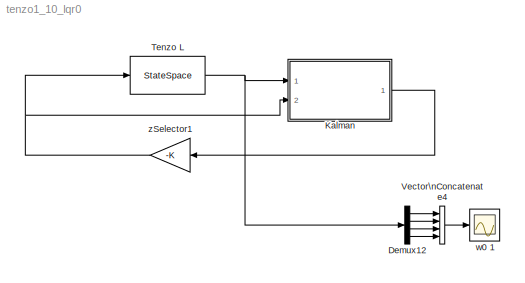
MODEL tenzo1_10_lqr0
KIND model
BLOCK [Demux] Demux12
  DisplayOption = bar
  Ports = [1, 4]
  SID = 4
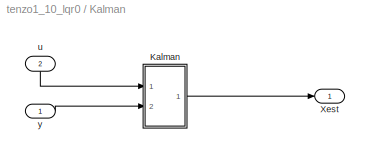
BLOCK [SubSystem] Kalman
  FunctionWithSeparateData = off
  MaskHideContents = off
  MinAlgLoopOccurrences = off
  Opaque = off
  Ports = [2, 1]
  PropExecContextOutsideSubsystem = off
  RTWSystemCode = Auto
  RequestExecContextInheritance = off
  SID = 7
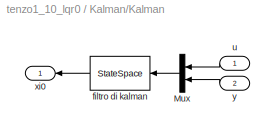
BLOCK [SubSystem] Kalman/Kalman
  FunctionWithSeparateData = off
  MaskHideContents = off
  MinAlgLoopOccurrences = off
  Opaque = off
  Ports = [2, 1]
  PropExecContextOutsideSubsystem = off
  RTWSystemCode = Auto
  RequestExecContextInheritance = off
  SID = 15
BLOCK [Mux] Kalman/Kalman/Mux
  DisplayOption = bar
  Inputs = [4 4]
  Ports = [2, 1]
  SID = 18
BLOCK [StateSpace] Kalman/Kalman/filtro di kalman
  A = Aoss
  B = Boss
  C = Coss
  D = Doss
  SID = 19
  X0 = [0 0 0 0 0 0 0 0]
BLOCK [Inport] Kalman/Kalman/u
  IconDisplay = Port number
  SID = 16
BLOCK [Outport] Kalman/Kalman/xi0
  IconDisplay = Port number
  SID = 20
BLOCK [Inport] Kalman/Kalman/y
  IconDisplay = Port number
  Port = 2
  SID = 17
BLOCK [Outport] Kalman/Xest
  IconDisplay = Port number
  SID = 28
BLOCK [Inport] Kalman/u
  IconDisplay = Port number
  Port = 2
  SID = 9
BLOCK [Inport] Kalman/y
  IconDisplay = Port number
  SID = 8
BLOCK [StateSpace] Tenzo L
  A = AMin
  B = BMin
  C = ClocalMin
  D = D
  SID = 1
  X0 = [0 0 0 0 0 0 0 0 ]
BLOCK [Concatenate] Vector\nConcatenate4
  NumInputs = 4
  Ports = [4, 1]
  SID = 5
BLOCK [Scope] w0  1
  DataFormat = StructureWithTime
  Floating = off
  LimitDataPoints = off
  NumInputPorts = 1
  Ports = [1]
  SID = 6
  SampleTime = 0
  SaveName = ScopeData1
  ShowLegends = off
  YMax = 7000
  YMin = 2500
BLOCK [Gain] zSelector1
  Gain = -K
  Multiplication = Matrix(K*u)
  OutDataTypeStr = Inherit: Inherit via internal rule
  ParamDataTypeStr = Inherit: Inherit via internal rule
  SID = 30
  SaturateOnIntegerOverflow = off
LINE Demux12:1 -> Vector\nConcatenate4:1
LINE Demux12:2 -> Vector\nConcatenate4:2
LINE Demux12:3 -> Vector\nConcatenate4:3
LINE Demux12:4 -> Vector\nConcatenate4:4
LINE Kalman/Kalman/Mux:1 -> Kalman/Kalman/filtro di kalman:1
LINE Kalman/Kalman/filtro di kalman:1 -> Kalman/Kalman/xi0:1
LINE Kalman/Kalman/u:1 -> Kalman/Kalman/Mux:1
LINE Kalman/Kalman/y:1 -> Kalman/Kalman/Mux:2
LINE Kalman/Kalman:1 -> Kalman/Xest:1
LINE Kalman/u:1 -> Kalman/Kalman:1
LINE Kalman/y:1 -> Kalman/Kalman:2
LINE Kalman:1 -> zSelector1:1
NET Tenzo L:1 -> Demux12:1, Kalman:1
LINE Vector\nConcatenate4:1 -> w0  1:1
NET zSelector1:1 -> Kalman:2, Tenzo L:1
note: NET lines group one-source signal fan-out (src -> all destinations, sorted); 1:1 wires keep LINE
